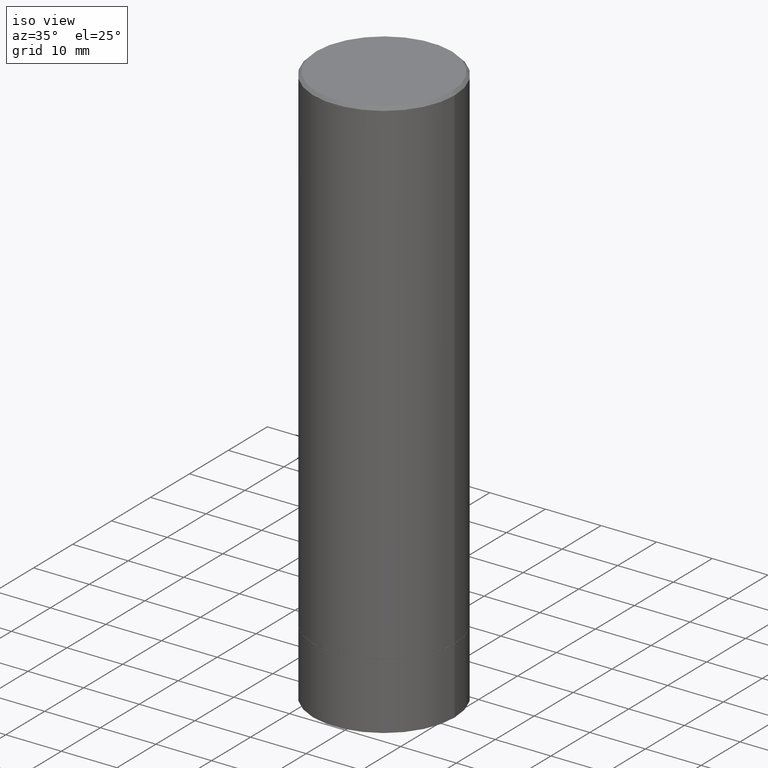
[diagram: clean part render]
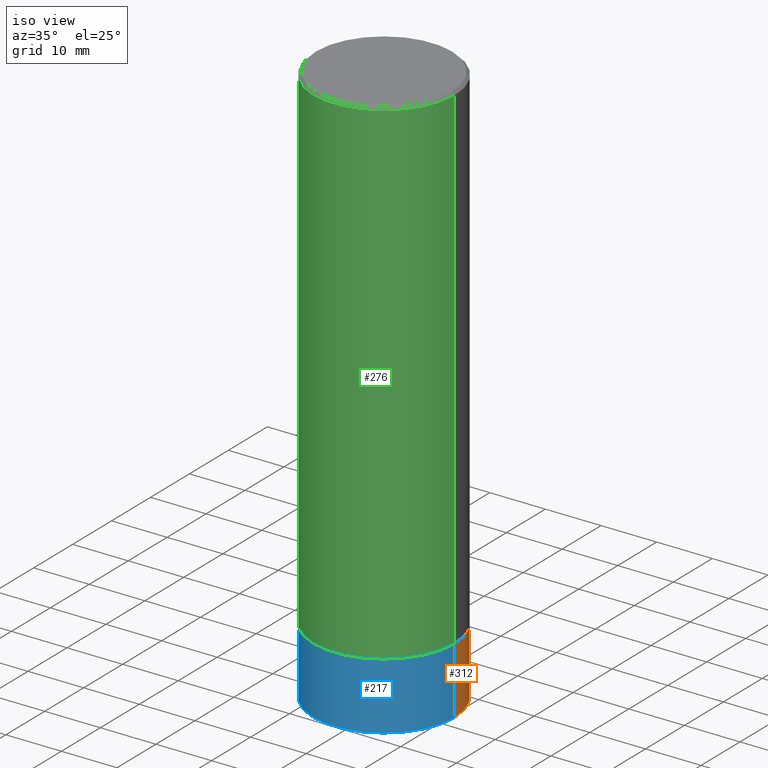
[diagram: same view with three faces highlighted in distinct colors, each labeled with its STEP entity id]
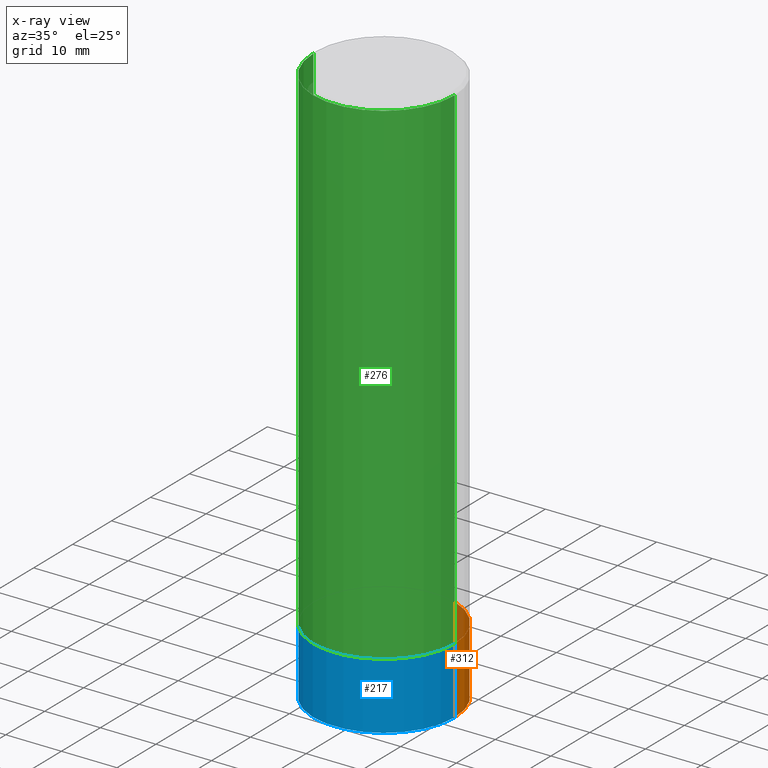
[diagram: x-ray of the same camera — body ghosted, the three highlighted faces saturated]
A machine part, iso view with three faces highlighted in distinct colors.
The next image is the same camera in x-ray (body ghosted, the three faces saturated) — at least one of them is partly hidden behind the body in this view.
Their STEP definitions:

[orange] entity #312 — the highlighted cylindrical surface (partial cylindrical patch) has radius 12.7 mm, axis along (-0, 0, 1).
#15 = EDGE_CURVE ( 'NONE', #268, #99, #282, .T. ) ;
#16 = CARTESIAN_POINT ( 'NONE',  ( 8.626635760698687502E-29, -1.231654957090308107E-14, -3.527599999999999625 ) ) ;
#18 = AXIS2_PLACEMENT_3D ( 'NONE', #291, #83, #41 ) ;
#24 = EDGE_CURVE ( 'NONE', #239, #317, #328, .T. ) ;
#32 = ORIENTED_EDGE ( 'NONE', *, *, #323, .T. ) ;
#41 = DIRECTION ( 'NONE',  ( 1.000000000000000000, -6.982962677686266711E-15, 0.000000000000000000 ) ) ;
#43 = CARTESIAN_POINT ( 'NONE',  ( -0.5000000000000000000, 3.552713678800500929E-15, -2.459467545127452891E-29 ) ) ;
#50 = DIRECTION ( 'NONE',  ( -2.445468806185136877E-29, 3.491481338843145188E-15, 1.000000000000000000 ) ) ;
#77 = CARTESIAN_POINT ( 'NONE',  ( -0.5000000000000026645, -1.047444401652943162E-14, -4.000000000000000000 ) ) ;
#83 = DIRECTION ( 'NONE',  ( -2.445468806185136597E-29, 3.491481338843145583E-15, 1.000000000000000000 ) ) ;
#91 = VECTOR ( 'NONE', #100, 39.37007874015748143 ) ;
#95 = LINE ( 'NONE', #43, #91 ) ;
#99 = VERTEX_POINT ( 'NONE', #114 ) ;
#100 = DIRECTION ( 'NONE',  ( -2.445468806185136877E-29, 3.491481338843145188E-15, 1.000000000000000000 ) ) ;
#103 = CYLINDRICAL_SURFACE ( 'NONE', #386, 0.5000000000000000000 ) ;
#114 = CARTESIAN_POINT ( 'NONE',  ( -0.5000000000000000000, -9.588523784337331561E-15, -3.527599999999999625 ) ) ;
#134 = DIRECTION ( 'NONE',  ( -2.445468806185136597E-29, 3.491481338843145583E-15, 1.000000000000000000 ) ) ;
#150 = CARTESIAN_POINT ( 'NONE',  ( 0.000000000000000000, 0.000000000000000000, 0.000000000000000000 ) ) ;
#176 = FACE_OUTER_BOUND ( 'NONE', #212, .T. ) ;
#186 = AXIS2_PLACEMENT_3D ( 'NONE', #16, #134, #253 ) ;
#192 = CARTESIAN_POINT ( 'NONE',  ( 0.5000000000000000000, -3.491481338843133355E-15, 2.438088387897967896E-29 ) ) ;
#212 = EDGE_LOOP ( 'NONE', ( #303, #32, #308, #310 ) ) ;
#239 = VERTEX_POINT ( 'NONE', #331 ) ;
#253 = DIRECTION ( 'NONE',  ( 1.000000000000000000, -6.982962677686266711E-15, 0.000000000000000000 ) ) ;
#268 = VERTEX_POINT ( 'NONE', #305 ) ;
#269 = VECTOR ( 'NONE', #50, 39.37007874015748143 ) ;
#277 = DIRECTION ( 'NONE',  ( -2.445468806185136597E-29, 3.491481338843145583E-15, 1.000000000000000000 ) ) ;
#282 = CIRCLE ( 'NONE', #186, 0.5000000000000000000 ) ;
#289 = LINE ( 'NONE', #192, #269 ) ;
#291 = CARTESIAN_POINT ( 'NONE',  ( 9.781875224740546387E-29, -1.396592535537258233E-14, -4.000000000000000000 ) ) ;
#303 = ORIENTED_EDGE ( 'NONE', *, *, #24, .T. ) ;
#305 = CARTESIAN_POINT ( 'NONE',  ( 0.5000000000000000000, -1.580803090974621443E-14, -3.527599999999999625 ) ) ;
#308 = ORIENTED_EDGE ( 'NONE', *, *, #15, .F. ) ;
#310 = ORIENTED_EDGE ( 'NONE', *, *, #360, .F. ) ;
#312 = ADVANCED_FACE ( 'NONE', ( #176 ), #103, .T. ) ;
#317 = VERTEX_POINT ( 'NONE', #77 ) ;
#323 = EDGE_CURVE ( 'NONE', #317, #99, #95, .T. ) ;
#328 = CIRCLE ( 'NONE', #18, 0.5000000000000000000 ) ;
#331 = CARTESIAN_POINT ( 'NONE',  ( 0.5000000000000026645, -1.739617435425836547E-14, -4.000000000000000000 ) ) ;
#348 = DIRECTION ( 'NONE',  ( 1.000000000000000000, -6.982962677686266711E-15, 4.876176775795935793E-29 ) ) ;
#360 = EDGE_CURVE ( 'NONE', #239, #268, #289, .T. ) ;
#386 = AXIS2_PLACEMENT_3D ( 'NONE', #150, #277, #348 ) ;

[blue] entity #217 — the highlighted cylindrical surface (partial cylindrical patch) has radius 12.7 mm, axis along (-0, 0, 1).
#7 = ORIENTED_EDGE ( 'NONE', *, *, #163, .F. ) ;
#37 = ORIENTED_EDGE ( 'NONE', *, *, #360, .T. ) ;
#43 = CARTESIAN_POINT ( 'NONE',  ( -0.5000000000000000000, 3.552713678800500929E-15, -2.459467545127452891E-29 ) ) ;
#50 = DIRECTION ( 'NONE',  ( -2.445468806185136877E-29, 3.491481338843145188E-15, 1.000000000000000000 ) ) ;
#52 = DIRECTION ( 'NONE',  ( -2.445468806185136597E-29, 3.491481338843145583E-15, 1.000000000000000000 ) ) ;
#54 = CARTESIAN_POINT ( 'NONE',  ( 0.000000000000000000, 0.000000000000000000, 0.000000000000000000 ) ) ;
#69 = EDGE_CURVE ( 'NONE', #317, #239, #196, .T. ) ;
#77 = CARTESIAN_POINT ( 'NONE',  ( -0.5000000000000026645, -1.047444401652943162E-14, -4.000000000000000000 ) ) ;
#88 = FACE_OUTER_BOUND ( 'NONE', #157, .T. ) ;
#91 = VECTOR ( 'NONE', #100, 39.37007874015748143 ) ;
#95 = LINE ( 'NONE', #43, #91 ) ;
#99 = VERTEX_POINT ( 'NONE', #114 ) ;
#100 = DIRECTION ( 'NONE',  ( -2.445468806185136877E-29, 3.491481338843145188E-15, 1.000000000000000000 ) ) ;
#114 = CARTESIAN_POINT ( 'NONE',  ( -0.5000000000000000000, -9.588523784337331561E-15, -3.527599999999999625 ) ) ;
#118 = CARTESIAN_POINT ( 'NONE',  ( 8.626635760698687502E-29, -1.231654957090308107E-14, -3.527599999999999625 ) ) ;
#152 = ORIENTED_EDGE ( 'NONE', *, *, #69, .T. ) ;
#157 = EDGE_LOOP ( 'NONE', ( #274, #152, #37, #7 ) ) ;
#158 = DIRECTION ( 'NONE',  ( -2.445468806185136597E-29, 3.491481338843145583E-15, 1.000000000000000000 ) ) ;
#163 = EDGE_CURVE ( 'NONE', #99, #268, #325, .T. ) ;
#174 = CYLINDRICAL_SURFACE ( 'NONE', #383, 0.5000000000000000000 ) ;
#192 = CARTESIAN_POINT ( 'NONE',  ( 0.5000000000000000000, -3.491481338843133355E-15, 2.438088387897967896E-29 ) ) ;
#196 = CIRCLE ( 'NONE', #262, 0.5000000000000000000 ) ;
#217 = ADVANCED_FACE ( 'NONE', ( #88 ), #174, .T. ) ;
#237 = AXIS2_PLACEMENT_3D ( 'NONE', #118, #293, #389 ) ;
#239 = VERTEX_POINT ( 'NONE', #331 ) ;
#262 = AXIS2_PLACEMENT_3D ( 'NONE', #313, #158, #285 ) ;
#268 = VERTEX_POINT ( 'NONE', #305 ) ;
#269 = VECTOR ( 'NONE', #50, 39.37007874015748143 ) ;
#274 = ORIENTED_EDGE ( 'NONE', *, *, #323, .F. ) ;
#285 = DIRECTION ( 'NONE',  ( 1.000000000000000000, -6.982962677686266711E-15, 0.000000000000000000 ) ) ;
#289 = LINE ( 'NONE', #192, #269 ) ;
#293 = DIRECTION ( 'NONE',  ( -2.445468806185136597E-29, 3.491481338843145583E-15, 1.000000000000000000 ) ) ;
#294 = DIRECTION ( 'NONE',  ( 1.000000000000000000, -6.982962677686266711E-15, 4.876176775795935793E-29 ) ) ;
#305 = CARTESIAN_POINT ( 'NONE',  ( 0.5000000000000000000, -1.580803090974621443E-14, -3.527599999999999625 ) ) ;
#313 = CARTESIAN_POINT ( 'NONE',  ( 9.781875224740546387E-29, -1.396592535537258233E-14, -4.000000000000000000 ) ) ;
#317 = VERTEX_POINT ( 'NONE', #77 ) ;
#323 = EDGE_CURVE ( 'NONE', #317, #99, #95, .T. ) ;
#325 = CIRCLE ( 'NONE', #237, 0.5000000000000000000 ) ;
#331 = CARTESIAN_POINT ( 'NONE',  ( 0.5000000000000026645, -1.739617435425836547E-14, -4.000000000000000000 ) ) ;
#360 = EDGE_CURVE ( 'NONE', #239, #268, #289, .T. ) ;
#383 = AXIS2_PLACEMENT_3D ( 'NONE', #54, #52, #294 ) ;
#389 = DIRECTION ( 'NONE',  ( 1.000000000000000000, -6.982962677686266711E-15, 0.000000000000000000 ) ) ;

[green] entity #276 — the highlighted cylindrical surface (partial cylindrical patch) has radius 12.7 mm, axis along (-0, 0, 1).
#19 = AXIS2_PLACEMENT_3D ( 'NONE', #246, #340, #67 ) ;
#22 = CARTESIAN_POINT ( 'NONE',  ( 4.890937612370302060E-31, -6.982962677686331052E-17, -0.02000000000000011491 ) ) ;
#33 = LINE ( 'NONE', #258, #139 ) ;
#53 = EDGE_CURVE ( 'NONE', #120, #146, #104, .T. ) ;
#63 = EDGE_LOOP ( 'NONE', ( #216, #335, #153, #220 ) ) ;
#67 = DIRECTION ( 'NONE',  ( 1.000000000000000000, -6.982962677686266711E-15, 4.876176775795935793E-29 ) ) ;
#86 = AXIS2_PLACEMENT_3D ( 'NONE', #272, #352, #301 ) ;
#96 = EDGE_CURVE ( 'NONE', #275, #179, #33, .T. ) ;
#104 = LINE ( 'NONE', #221, #370 ) ;
#120 = VERTEX_POINT ( 'NONE', #326 ) ;
#123 = EDGE_CURVE ( 'NONE', #179, #146, #378, .T. ) ;
#139 = VECTOR ( 'NONE', #140, 39.37007874015748143 ) ;
#140 = DIRECTION ( 'NONE',  ( -2.445468806185136877E-29, 3.491481338843145188E-15, 1.000000000000000000 ) ) ;
#146 = VERTEX_POINT ( 'NONE', #361 ) ;
#153 = ORIENTED_EDGE ( 'NONE', *, *, #53, .T. ) ;
#168 = CARTESIAN_POINT ( 'NONE',  ( -0.4999999999999996114, 3.421651712066267296E-15, -0.02000000000000011491 ) ) ;
#177 = AXIS2_PLACEMENT_3D ( 'NONE', #22, #234, #261 ) ;
#179 = VERTEX_POINT ( 'NONE', #168 ) ;
#184 = DIRECTION ( 'NONE',  ( -2.445468806185136877E-29, 3.491481338843145188E-15, 1.000000000000000000 ) ) ;
#213 = CARTESIAN_POINT ( 'NONE',  ( -0.5000000000000000000, -2.638730179370047780E-15, -3.526600000000000179 ) ) ;
#216 = ORIENTED_EDGE ( 'NONE', *, *, #96, .F. ) ;
#220 = ORIENTED_EDGE ( 'NONE', *, *, #123, .F. ) ;
#221 = CARTESIAN_POINT ( 'NONE',  ( 0.4999999999999997780, -3.491481338843131778E-15, 2.438088387897966775E-29 ) ) ;
#234 = DIRECTION ( 'NONE',  ( -2.445468806185136597E-29, 3.491481338843145583E-15, 1.000000000000000000 ) ) ;
#242 = CYLINDRICAL_SURFACE ( 'NONE', #19, 0.4999999999999997780 ) ;
#246 = CARTESIAN_POINT ( 'NONE',  ( 0.000000000000000000, 0.000000000000000000, 0.000000000000000000 ) ) ;
#258 = CARTESIAN_POINT ( 'NONE',  ( -0.4999999999999997780, 3.552713678800499352E-15, -2.459467545127452050E-29 ) ) ;
#261 = DIRECTION ( 'NONE',  ( 1.000000000000000000, -6.982962677686266711E-15, 0.000000000000000000 ) ) ;
#272 = CARTESIAN_POINT ( 'NONE',  ( 8.624190291892503020E-29, -1.231305808956423806E-14, -3.526600000000000179 ) ) ;
#275 = VERTEX_POINT ( 'NONE', #213 ) ;
#276 = ADVANCED_FACE ( 'NONE', ( #374 ), #242, .T. ) ;
#288 = CIRCLE ( 'NONE', #86, 0.5000000000000000000 ) ;
#301 = DIRECTION ( 'NONE',  ( 1.000000000000000000, -6.982962677686266711E-15, 0.000000000000000000 ) ) ;
#326 = CARTESIAN_POINT ( 'NONE',  ( 0.5000000000000000000, -1.580453942840736984E-14, -3.526600000000000179 ) ) ;
#335 = ORIENTED_EDGE ( 'NONE', *, *, #353, .T. ) ;
#340 = DIRECTION ( 'NONE',  ( -2.445468806185136597E-29, 3.491481338843145583E-15, 1.000000000000000000 ) ) ;
#352 = DIRECTION ( 'NONE',  ( -2.445468806185136597E-29, 3.491481338843145583E-15, 1.000000000000000000 ) ) ;
#353 = EDGE_CURVE ( 'NONE', #275, #120, #288, .T. ) ;
#361 = CARTESIAN_POINT ( 'NONE',  ( 0.4999999999999996114, -3.500078625662626318E-15, -0.02000000000000011491 ) ) ;
#370 = VECTOR ( 'NONE', #184, 39.37007874015748143 ) ;
#374 = FACE_OUTER_BOUND ( 'NONE', #63, .T. ) ;
#378 = CIRCLE ( 'NONE', #177, 0.4999999999999996114 ) ;